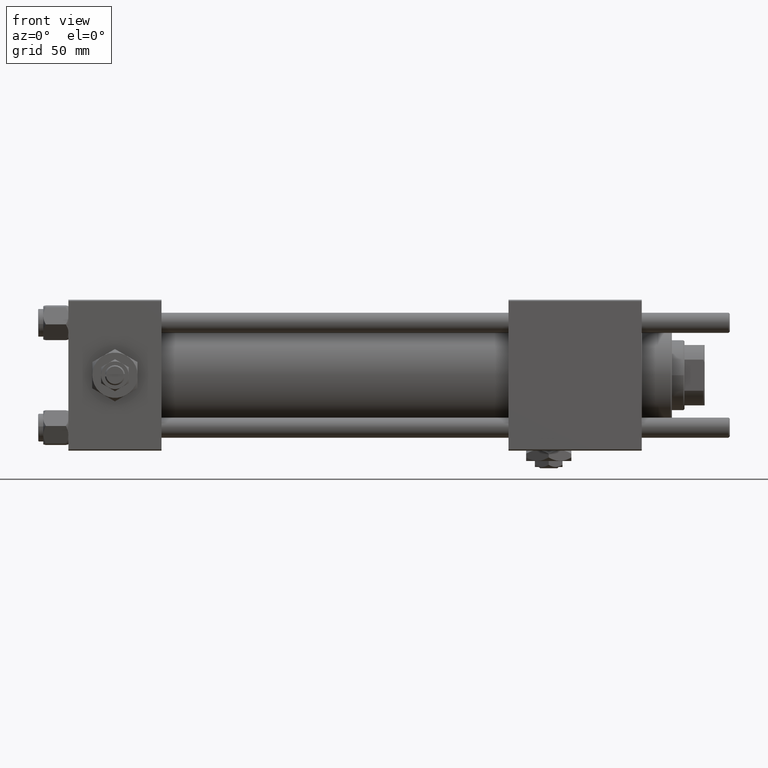
[diagram: clean part render]
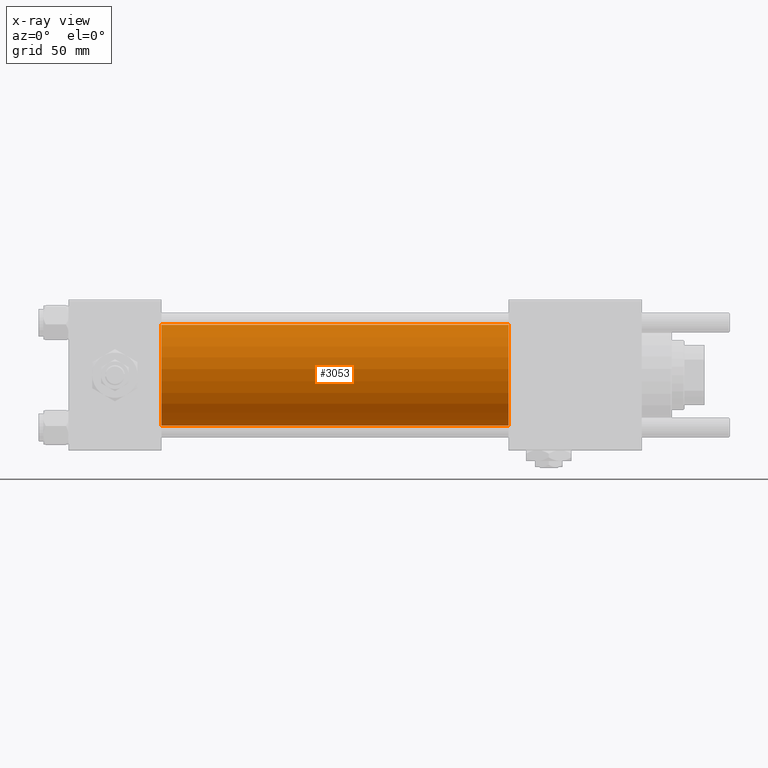
[diagram: x-ray — body ghosted, one internal face saturated and labeled with its STEP entity id]
A machine part, front view, then the same camera in x-ray: the body is ghosted and one INTERNAL B-rep face — a face not visible from any outside direction — is saturated and labeled: STEP entity #3053.
In plain terms, the highlighted cylindrical surface (partial cylindrical patch) has radius 20 mm, axis along (-1, -0, -0).
Its self-contained STEP definition (entity closure, byte-faithful):
#617 = CARTESIAN_POINT ( 'NONE',  ( 175.0000000000000284, -2.602085213965210642E-15, 0.000000000000000000 ) ) ;
#1031 = VECTOR ( 'NONE', #45685, 1000.000000000000000 ) ;
#2518 = DIRECTION ( 'NONE',  ( 0.000000000000000000, 0.000000000000000000, -1.000000000000000000 ) ) ;
#3053 = ADVANCED_FACE ( 'NONE', ( #18179 ), #31857, .F. ) ;
#4634 = ORIENTED_EDGE ( 'NONE', *, *, #31429, .T. ) ;
#5654 = VERTEX_POINT ( 'NONE', #12902 ) ;
#6652 = AXIS2_PLACEMENT_3D ( 'NONE', #25133, #43281, #2518 ) ;
#12056 = ORIENTED_EDGE ( 'NONE', *, *, #49077, .F. ) ;
#12534 = AXIS2_PLACEMENT_3D ( 'NONE', #53861, #18109, #13052 ) ;
#12902 = CARTESIAN_POINT ( 'NONE',  ( 37.00000000000000000, -1.527916156705042519E-16, -20.00000000000000000 ) ) ;
#13052 = DIRECTION ( 'NONE',  ( 0.000000000000000000, 0.000000000000000000, -1.000000000000000000 ) ) ;
#14393 = CIRCLE ( 'NONE', #12534, 20.00000000000000000 ) ;
#18109 = DIRECTION ( 'NONE',  ( 1.000000000000000000, 0.000000000000000000, 0.000000000000000000 ) ) ;
#18118 = LINE ( 'NONE', #58338, #53647 ) ;
#18179 = FACE_OUTER_BOUND ( 'NONE', #35298, .T. ) ;
#18577 = LINE ( 'NONE', #27518, #1031 ) ;
#19106 = VERTEX_POINT ( 'NONE', #36829 ) ;
#25133 = CARTESIAN_POINT ( 'NONE',  ( 175.0000000000000284, -2.602085213965210642E-15, 0.000000000000000000 ) ) ;
#26458 = DIRECTION ( 'NONE',  ( -1.000000000000000000, -0.000000000000000000, -0.000000000000000000 ) ) ;
#27518 = CARTESIAN_POINT ( 'NONE',  ( 175.0000000000000284, -1.527916156705042519E-16, -20.00000000000000000 ) ) ;
#27542 = CIRCLE ( 'NONE', #6652, 20.00000000000000000 ) ;
#29844 = CARTESIAN_POINT ( 'NONE',  ( 175.0000000000000284, -2.602085213965210642E-15, 20.00000000000000000 ) ) ;
#31429 = EDGE_CURVE ( 'NONE', #47301, #19106, #27542, .T. ) ;
#31857 = CYLINDRICAL_SURFACE ( 'NONE', #41481, 20.00000000000000000 ) ;
#32142 = DIRECTION ( 'NONE',  ( 0.000000000000000000, 0.000000000000000000, 1.000000000000000000 ) ) ;
#33926 = VERTEX_POINT ( 'NONE', #39855 ) ;
#35298 = EDGE_LOOP ( 'NONE', ( #4634, #56838, #56207, #12056 ) ) ;
#36829 = CARTESIAN_POINT ( 'NONE',  ( 175.0000000000000284, -1.527916156705042519E-16, -20.00000000000000000 ) ) ;
#38984 = EDGE_CURVE ( 'NONE', #19106, #5654, #18577, .T. ) ;
#39855 = CARTESIAN_POINT ( 'NONE',  ( 37.00000000000000000, -2.602085213965210642E-15, 20.00000000000000000 ) ) ;
#41431 = EDGE_CURVE ( 'NONE', #33926, #5654, #14393, .T. ) ;
#41481 = AXIS2_PLACEMENT_3D ( 'NONE', #617, #41962, #32142 ) ;
#41962 = DIRECTION ( 'NONE',  ( -1.000000000000000000, -0.000000000000000000, -0.000000000000000000 ) ) ;
#43281 = DIRECTION ( 'NONE',  ( 1.000000000000000000, 0.000000000000000000, 0.000000000000000000 ) ) ;
#45685 = DIRECTION ( 'NONE',  ( -1.000000000000000000, -0.000000000000000000, -0.000000000000000000 ) ) ;
#47301 = VERTEX_POINT ( 'NONE', #29844 ) ;
#49077 = EDGE_CURVE ( 'NONE', #47301, #33926, #18118, .T. ) ;
#53647 = VECTOR ( 'NONE', #26458, 1000.000000000000000 ) ;
#53861 = CARTESIAN_POINT ( 'NONE',  ( 37.00000000000000000, -2.602085213965210642E-15, 0.000000000000000000 ) ) ;
#56207 = ORIENTED_EDGE ( 'NONE', *, *, #41431, .F. ) ;
#56838 = ORIENTED_EDGE ( 'NONE', *, *, #38984, .T. ) ;
#58338 = CARTESIAN_POINT ( 'NONE',  ( 175.0000000000000284, -2.602085213965210642E-15, 20.00000000000000000 ) ) ;